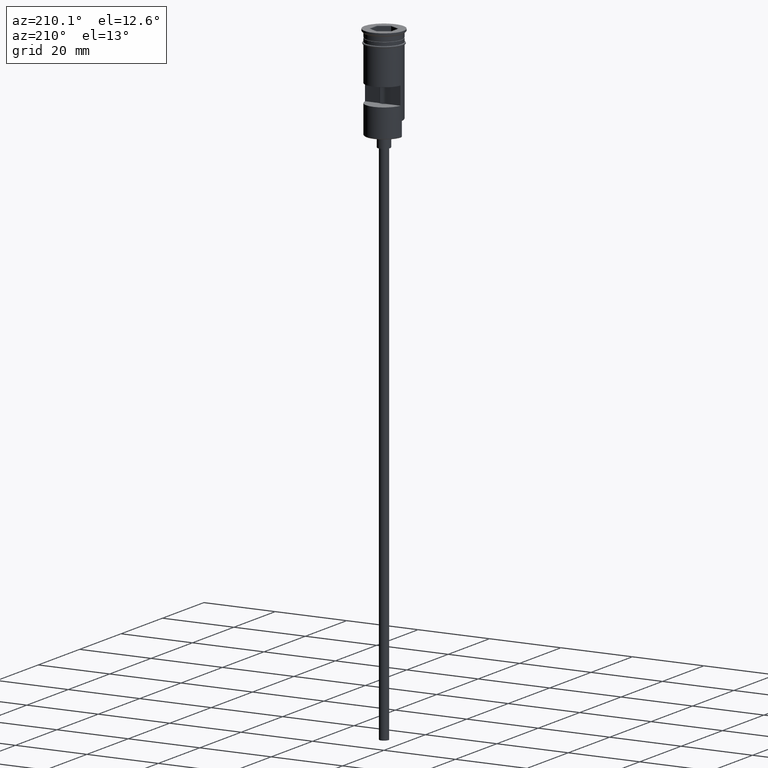
[diagram: clean part render]
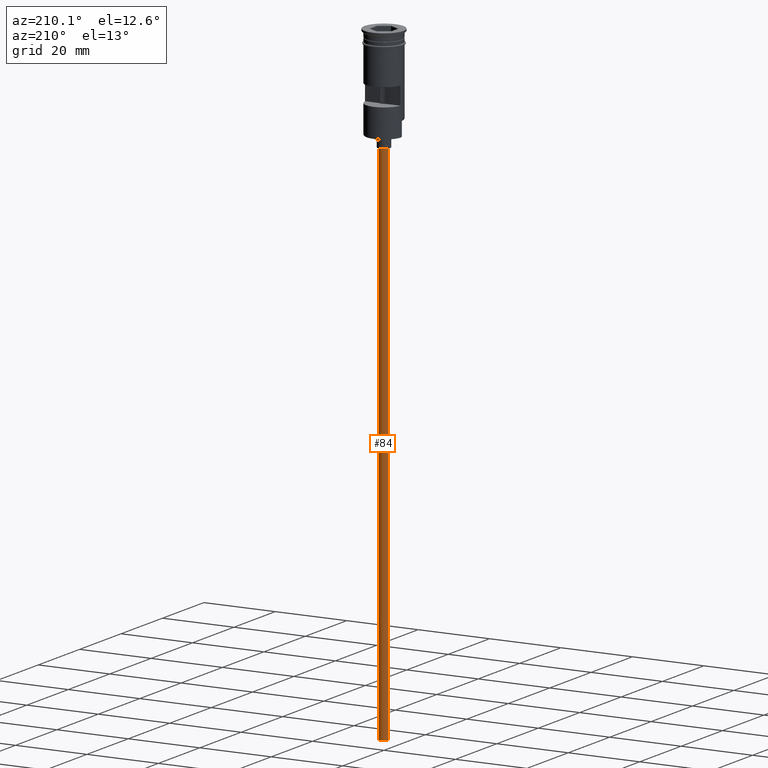
[diagram: same view with one face highlighted and labeled with its STEP entity id]
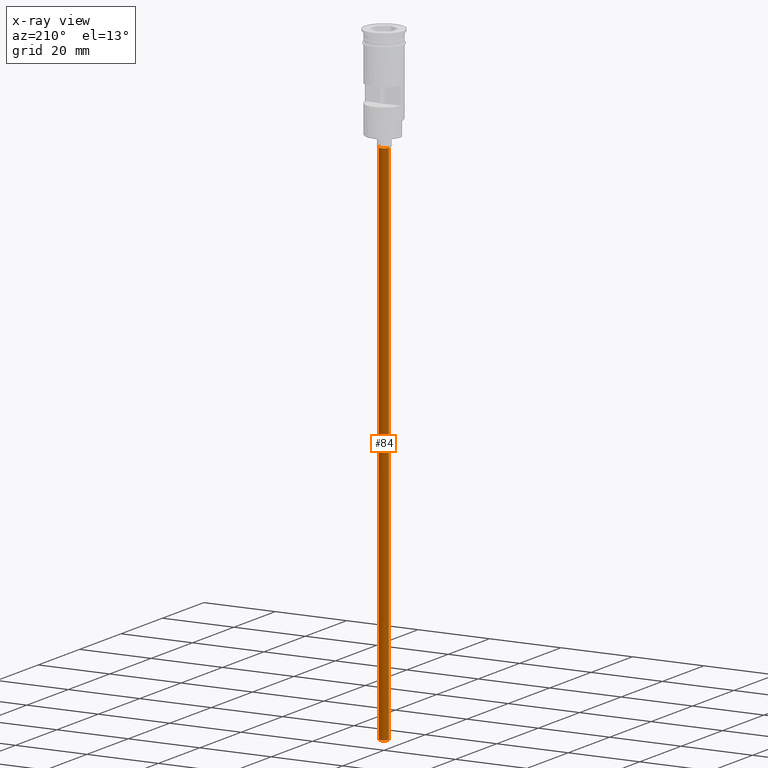
[diagram: x-ray of the same camera — body ghosted, the highlighted face saturated]
A machine part, auxiliary view. The second image highlights one B-rep face of the part: STEP entity #84.
The next image is the same camera in x-ray: the body ghosted, the highlighted face saturated — about 0% of this face is hidden behind the body in this view.
In plain terms, the highlighted cylindrical surface (edge-blend (fillet) strip) has radius 1.25 mm, axis along (-0, -0, 1).
Its self-contained STEP definition (entity closure, byte-faithful):
#56 = AXIS2_PLACEMENT_3D ( 'NONE', #988, #762, #970 ) ;
#83 = CIRCLE ( 'NONE', #299, 1.250000000000000000 ) ;
#84 = ADVANCED_FACE ( 'NONE', ( #1303 ), #1109, .T. ) ;
#85 = ORIENTED_EDGE ( 'NONE', *, *, #1061, .F. ) ;
#162 = ORIENTED_EDGE ( 'NONE', *, *, #1176, .F. ) ;
#200 = DIRECTION ( 'NONE',  ( -0.000000000000000000, -0.000000000000000000, 1.000000000000000000 ) ) ;
#218 = ORIENTED_EDGE ( 'NONE', *, *, #380, .T. ) ;
#291 = DIRECTION ( 'NONE',  ( 0.000000000000000000, 0.000000000000000000, -1.000000000000000000 ) ) ;
#298 = DIRECTION ( 'NONE',  ( -1.000000000000000000, 0.000000000000000000, 0.000000000000000000 ) ) ;
#299 = AXIS2_PLACEMENT_3D ( 'NONE', #1267, #907, #298 ) ;
#320 = VECTOR ( 'NONE', #1547, 1000.000000000000000 ) ;
#337 = CARTESIAN_POINT ( 'NONE',  ( 1.250000000000000000, 0.000000000000000000, -176.5000000000000000 ) ) ;
#380 = EDGE_CURVE ( 'NONE', #1482, #558, #1166, .T. ) ;
#404 = VERTEX_POINT ( 'NONE', #1467 ) ;
#558 = VERTEX_POINT ( 'NONE', #1375 ) ;
#611 = VERTEX_POINT ( 'NONE', #651 ) ;
#651 = CARTESIAN_POINT ( 'NONE',  ( 1.250000000000000000, 0.000000000000000000, -29.50000000000000000 ) ) ;
#671 = ORIENTED_EDGE ( 'NONE', *, *, #951, .T. ) ;
#715 = AXIS2_PLACEMENT_3D ( 'NONE', #1029, #291, #890 ) ;
#762 = DIRECTION ( 'NONE',  ( -0.000000000000000000, -0.000000000000000000, 1.000000000000000000 ) ) ;
#890 = DIRECTION ( 'NONE',  ( -1.000000000000000000, 0.000000000000000000, 0.000000000000000000 ) ) ;
#907 = DIRECTION ( 'NONE',  ( 0.000000000000000000, 0.000000000000000000, -1.000000000000000000 ) ) ;
#951 = EDGE_CURVE ( 'NONE', #558, #611, #1433, .T. ) ;
#970 = DIRECTION ( 'NONE',  ( 1.000000000000000000, 0.000000000000000000, 0.000000000000000000 ) ) ;
#988 = CARTESIAN_POINT ( 'NONE',  ( 0.000000000000000000, 0.000000000000000000, -176.5000000000000000 ) ) ;
#1029 = CARTESIAN_POINT ( 'NONE',  ( 0.000000000000000000, 0.000000000000000000, -29.50000000000000000 ) ) ;
#1061 = EDGE_CURVE ( 'NONE', #1482, #404, #83, .T. ) ;
#1109 = CYLINDRICAL_SURFACE ( 'NONE', #56, 1.250000000000000000 ) ;
#1166 = LINE ( 'NONE', #1393, #320 ) ;
#1176 = EDGE_CURVE ( 'NONE', #404, #611, #1420, .T. ) ;
#1214 = EDGE_LOOP ( 'NONE', ( #85, #218, #671, #162 ) ) ;
#1267 = CARTESIAN_POINT ( 'NONE',  ( 0.000000000000000000, 0.000000000000000000, -176.5000000000000000 ) ) ;
#1303 = FACE_OUTER_BOUND ( 'NONE', #1214, .T. ) ;
#1375 = CARTESIAN_POINT ( 'NONE',  ( -1.250000000000000000, 1.530808498934191571E-16, -29.50000000000000000 ) ) ;
#1393 = CARTESIAN_POINT ( 'NONE',  ( -1.250000000000000000, 1.530808498934191571E-16, -176.5000000000000000 ) ) ;
#1420 = LINE ( 'NONE', #337, #1436 ) ;
#1433 = CIRCLE ( 'NONE', #715, 1.250000000000000000 ) ;
#1436 = VECTOR ( 'NONE', #200, 1000.000000000000000 ) ;
#1467 = CARTESIAN_POINT ( 'NONE',  ( 1.250000000000000000, 0.000000000000000000, -176.5000000000000000 ) ) ;
#1482 = VERTEX_POINT ( 'NONE', #1509 ) ;
#1509 = CARTESIAN_POINT ( 'NONE',  ( -1.250000000000000000, 1.530808498934191571E-16, -176.5000000000000000 ) ) ;
#1547 = DIRECTION ( 'NONE',  ( -0.000000000000000000, -0.000000000000000000, 1.000000000000000000 ) ) ;